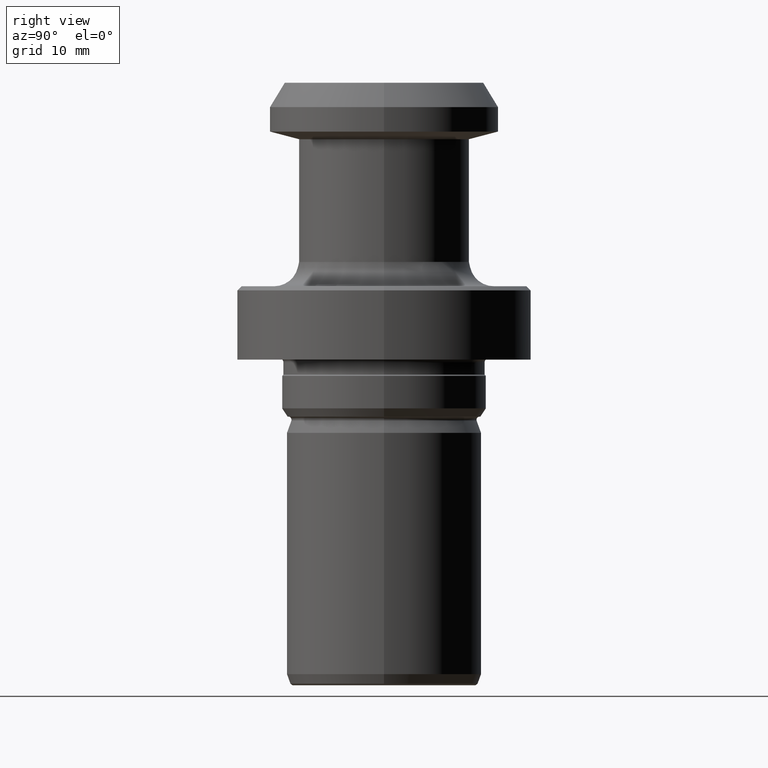
[diagram: clean part render]
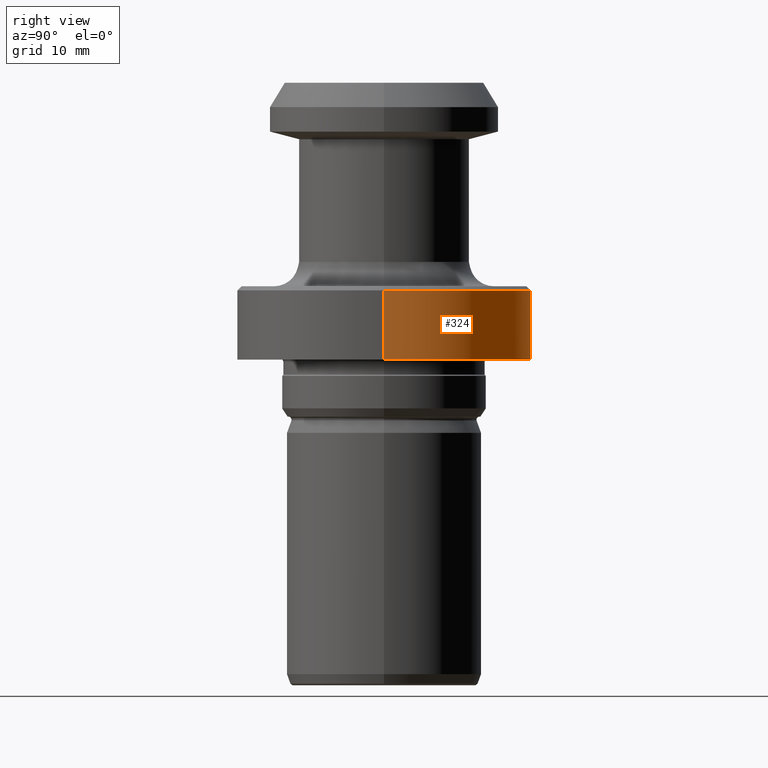
[diagram: same view with one face highlighted and labeled with its STEP entity id]
A machine part, right view. The second image highlights one B-rep face of the part: STEP entity #324.
In plain terms, the highlighted cylindrical surface (partial cylindrical patch) has radius 18 mm, axis along (-0, -0, 1).
Its self-contained STEP definition (entity closure, byte-faithful):
#22 = CARTESIAN_POINT ( 'NONE',  ( 0.0000000000000000000, 0.0000000000000000000, -34.00000000000000000 ) ) ;
#44 = VECTOR ( 'NONE', #577, 1000.000000000000000 ) ;
#52 = VERTEX_POINT ( 'NONE', #1099 ) ;
#127 = AXIS2_PLACEMENT_3D ( 'NONE', #1088, #974, #1156 ) ;
#141 = ORIENTED_EDGE ( 'NONE', *, *, #332, .F. ) ;
#197 = CARTESIAN_POINT ( 'NONE',  ( -18.00000000000000000, 2.204364238465235400E-015, -25.50000000000000000 ) ) ;
#222 = VERTEX_POINT ( 'NONE', #197 ) ;
#230 = CARTESIAN_POINT ( 'NONE',  ( -18.00000000000000000, 2.204364238465235400E-015, -34.00000000000000000 ) ) ;
#250 = CARTESIAN_POINT ( 'NONE',  ( 0.0000000000000000000, 0.0000000000000000000, 0.0000000000000000000 ) ) ;
#261 = CARTESIAN_POINT ( 'NONE',  ( 18.00000000000000000, 0.0000000000000000000, 0.0000000000000000000 ) ) ;
#312 = CIRCLE ( 'NONE', #408, 18.00000000000000000 ) ;
#317 = CARTESIAN_POINT ( 'NONE',  ( 18.00000000000000000, 0.0000000000000000000, -25.50000000000000000 ) ) ;
#323 = LINE ( 'NONE', #261, #44 ) ;
#324 = ADVANCED_FACE ( 'NONE', ( #1037 ), #766, .T. ) ;
#332 = EDGE_CURVE ( 'NONE', #52, #600, #323, .T. ) ;
#340 = DIRECTION ( 'NONE',  ( 1.000000000000000000, 0.0000000000000000000, 0.0000000000000000000 ) ) ;
#397 = VECTOR ( 'NONE', #834, 1000.000000000000000 ) ;
#408 = AXIS2_PLACEMENT_3D ( 'NONE', #22, #662, #413 ) ;
#413 = DIRECTION ( 'NONE',  ( 1.000000000000000000, 0.0000000000000000000, 0.0000000000000000000 ) ) ;
#414 = EDGE_LOOP ( 'NONE', ( #669, #717, #1142, #141 ) ) ;
#416 = AXIS2_PLACEMENT_3D ( 'NONE', #250, #541, #340 ) ;
#501 = CIRCLE ( 'NONE', #127, 18.00000000000000000 ) ;
#541 = DIRECTION ( 'NONE',  ( -0.0000000000000000000, -0.0000000000000000000, 1.000000000000000000 ) ) ;
#577 = DIRECTION ( 'NONE',  ( -0.0000000000000000000, -0.0000000000000000000, 1.000000000000000000 ) ) ;
#600 = VERTEX_POINT ( 'NONE', #317 ) ;
#604 = VERTEX_POINT ( 'NONE', #230 ) ;
#645 = EDGE_CURVE ( 'NONE', #604, #222, #688, .T. ) ;
#662 = DIRECTION ( 'NONE',  ( -0.0000000000000000000, -0.0000000000000000000, 1.000000000000000000 ) ) ;
#669 = ORIENTED_EDGE ( 'NONE', *, *, #993, .T. ) ;
#688 = LINE ( 'NONE', #829, #397 ) ;
#717 = ORIENTED_EDGE ( 'NONE', *, *, #645, .T. ) ;
#766 = CYLINDRICAL_SURFACE ( 'NONE', #416, 18.00000000000000000 ) ;
#829 = CARTESIAN_POINT ( 'NONE',  ( -18.00000000000000000, 2.204364238465235400E-015, 0.0000000000000000000 ) ) ;
#834 = DIRECTION ( 'NONE',  ( -0.0000000000000000000, -0.0000000000000000000, 1.000000000000000000 ) ) ;
#887 = EDGE_CURVE ( 'NONE', #600, #222, #501, .T. ) ;
#974 = DIRECTION ( 'NONE',  ( -0.0000000000000000000, -0.0000000000000000000, 1.000000000000000000 ) ) ;
#993 = EDGE_CURVE ( 'NONE', #52, #604, #312, .T. ) ;
#1037 = FACE_OUTER_BOUND ( 'NONE', #414, .T. ) ;
#1088 = CARTESIAN_POINT ( 'NONE',  ( 0.0000000000000000000, 0.0000000000000000000, -25.50000000000000000 ) ) ;
#1099 = CARTESIAN_POINT ( 'NONE',  ( 18.00000000000000000, 0.0000000000000000000, -34.00000000000000000 ) ) ;
#1142 = ORIENTED_EDGE ( 'NONE', *, *, #887, .F. ) ;
#1156 = DIRECTION ( 'NONE',  ( 1.000000000000000000, 0.0000000000000000000, 0.0000000000000000000 ) ) ;